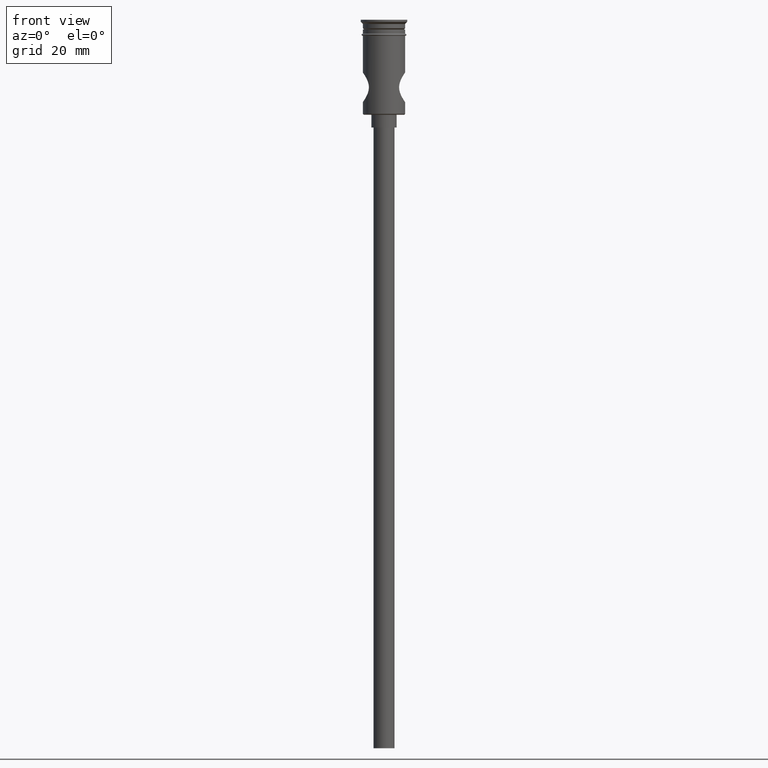
[diagram: clean part render]
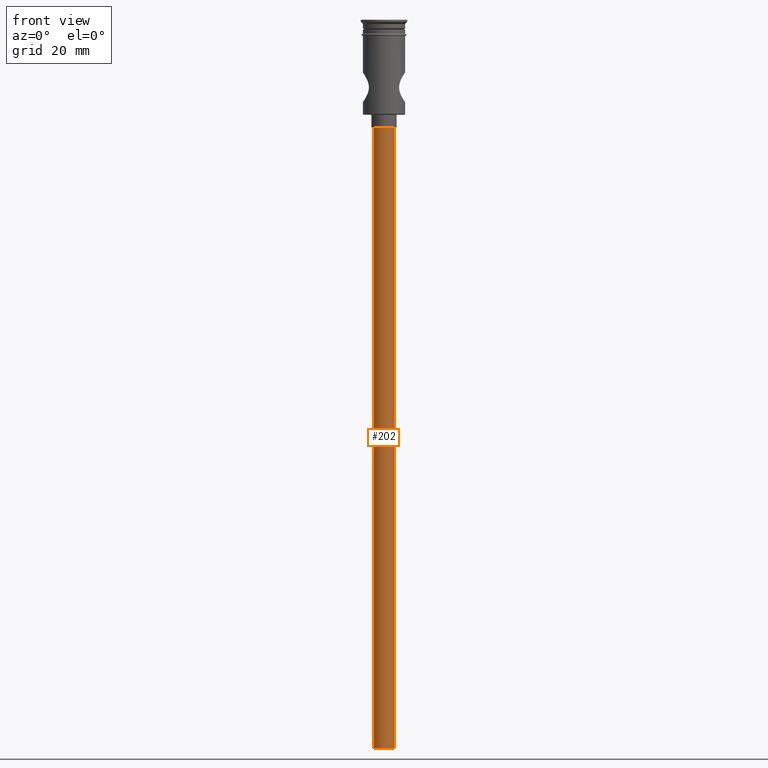
[diagram: same view with one face highlighted and labeled with its STEP entity id]
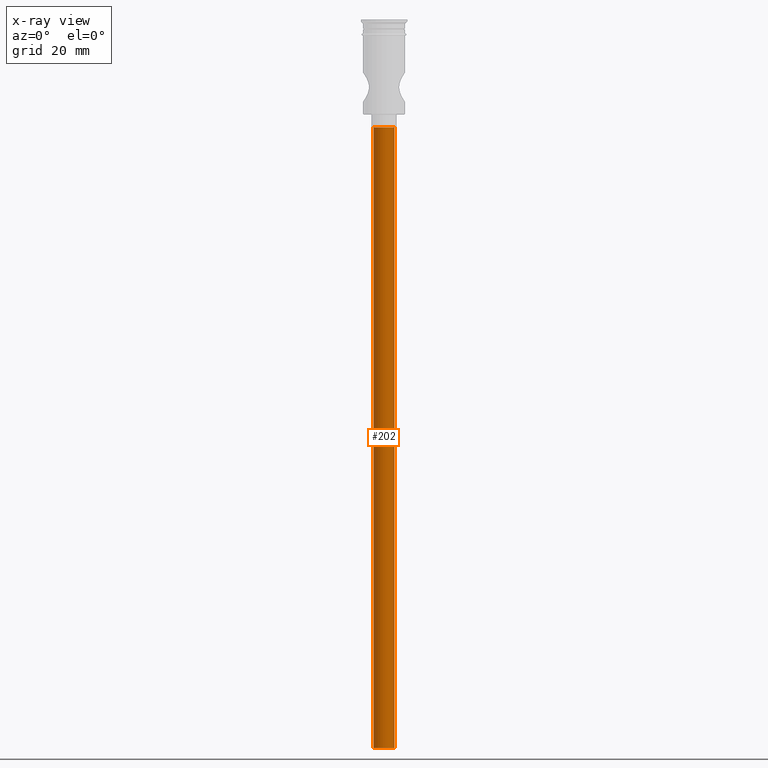
[diagram: x-ray of the same camera — body ghosted, the highlighted face saturated]
A machine part, front view. The second image highlights one B-rep face of the part: STEP entity #202.
The next image is the same camera in x-ray: the body ghosted, the highlighted face saturated — about 0% of this face is hidden behind the body in this view.
In plain terms, the highlighted cylindrical surface (edge-blend (fillet) strip) has radius 2.5 mm, axis along (-0, -0, 1).
Its self-contained STEP definition (entity closure, byte-faithful):
#43 = DIRECTION ( 'NONE',  ( -0.000000000000000000, -0.000000000000000000, 1.000000000000000000 ) ) ;
#57 = ORIENTED_EDGE ( 'NONE', *, *, #907, .F. ) ;
#115 = VECTOR ( 'NONE', #43, 1000.000000000000000 ) ;
#140 = ORIENTED_EDGE ( 'NONE', *, *, #1323, .F. ) ;
#147 = VERTEX_POINT ( 'NONE', #581 ) ;
#150 = FACE_OUTER_BOUND ( 'NONE', #1194, .T. ) ;
#155 = CARTESIAN_POINT ( 'NONE',  ( -2.500000000000000000, 3.061616997868383141E-16, -25.50000000000000000 ) ) ;
#164 = CARTESIAN_POINT ( 'NONE',  ( 0.000000000000000000, 0.000000000000000000, -25.50000000000000000 ) ) ;
#202 = ADVANCED_FACE ( 'NONE', ( #150 ), #947, .T. ) ;
#203 = LINE ( 'NONE', #648, #1180 ) ;
#220 = AXIS2_PLACEMENT_3D ( 'NONE', #1039, #1172, #585 ) ;
#225 = DIRECTION ( 'NONE',  ( -0.000000000000000000, -0.000000000000000000, 1.000000000000000000 ) ) ;
#277 = DIRECTION ( 'NONE',  ( -1.000000000000000000, 0.000000000000000000, 0.000000000000000000 ) ) ;
#381 = DIRECTION ( 'NONE',  ( 0.000000000000000000, 0.000000000000000000, -1.000000000000000000 ) ) ;
#581 = CARTESIAN_POINT ( 'NONE',  ( 2.500000000000000000, 0.000000000000000000, -25.50000000000000000 ) ) ;
#585 = DIRECTION ( 'NONE',  ( 1.000000000000000000, 0.000000000000000000, 0.000000000000000000 ) ) ;
#611 = CARTESIAN_POINT ( 'NONE',  ( 0.000000000000000000, 0.000000000000000000, -172.5000000000000000 ) ) ;
#648 = CARTESIAN_POINT ( 'NONE',  ( 2.500000000000000000, 0.000000000000000000, -172.5000000000000000 ) ) ;
#907 = EDGE_CURVE ( 'NONE', #1451, #1269, #1192, .T. ) ;
#923 = EDGE_CURVE ( 'NONE', #147, #1269, #1286, .T. ) ;
#933 = AXIS2_PLACEMENT_3D ( 'NONE', #611, #1195, #1423 ) ;
#947 = CYLINDRICAL_SURFACE ( 'NONE', #220, 2.500000000000000000 ) ;
#959 = VERTEX_POINT ( 'NONE', #1435 ) ;
#1036 = ORIENTED_EDGE ( 'NONE', *, *, #1382, .T. ) ;
#1039 = CARTESIAN_POINT ( 'NONE',  ( 0.000000000000000000, 0.000000000000000000, -172.5000000000000000 ) ) ;
#1063 = CARTESIAN_POINT ( 'NONE',  ( -2.500000000000000000, 3.061616997868383141E-16, -172.5000000000000000 ) ) ;
#1170 = ORIENTED_EDGE ( 'NONE', *, *, #923, .T. ) ;
#1172 = DIRECTION ( 'NONE',  ( -0.000000000000000000, -0.000000000000000000, 1.000000000000000000 ) ) ;
#1180 = VECTOR ( 'NONE', #225, 1000.000000000000000 ) ;
#1192 = LINE ( 'NONE', #1063, #115 ) ;
#1194 = EDGE_LOOP ( 'NONE', ( #57, #140, #1036, #1170 ) ) ;
#1195 = DIRECTION ( 'NONE',  ( 0.000000000000000000, 0.000000000000000000, -1.000000000000000000 ) ) ;
#1269 = VERTEX_POINT ( 'NONE', #155 ) ;
#1286 = CIRCLE ( 'NONE', #1313, 2.500000000000000000 ) ;
#1289 = CIRCLE ( 'NONE', #933, 2.500000000000000000 ) ;
#1313 = AXIS2_PLACEMENT_3D ( 'NONE', #164, #381, #277 ) ;
#1323 = EDGE_CURVE ( 'NONE', #959, #1451, #1289, .T. ) ;
#1377 = CARTESIAN_POINT ( 'NONE',  ( -2.500000000000000000, 3.061616997868383141E-16, -172.5000000000000000 ) ) ;
#1382 = EDGE_CURVE ( 'NONE', #959, #147, #203, .T. ) ;
#1423 = DIRECTION ( 'NONE',  ( -1.000000000000000000, 0.000000000000000000, 0.000000000000000000 ) ) ;
#1435 = CARTESIAN_POINT ( 'NONE',  ( 2.500000000000000000, 0.000000000000000000, -172.5000000000000000 ) ) ;
#1451 = VERTEX_POINT ( 'NONE', #1377 ) ;